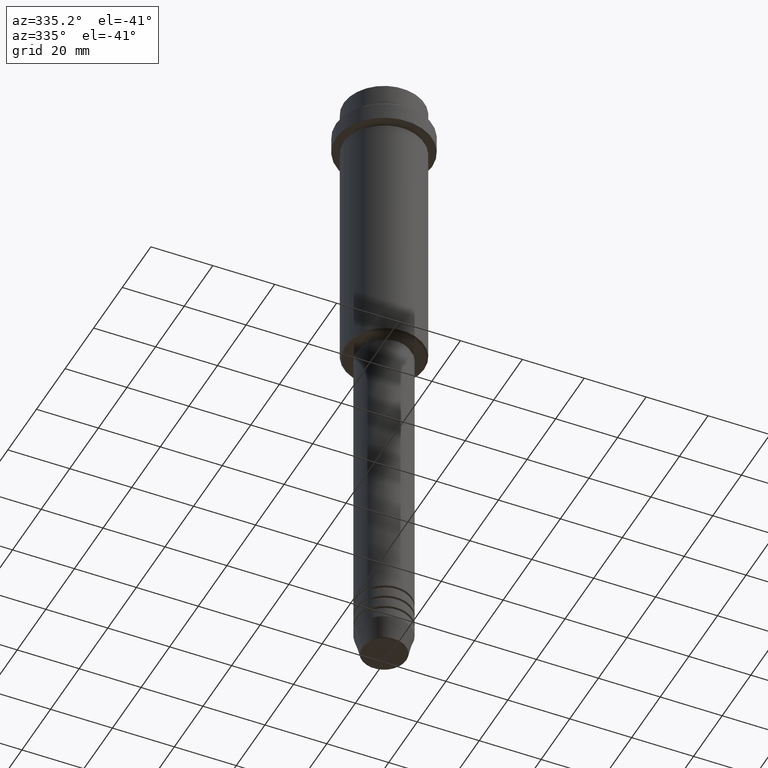
[diagram: clean part render]
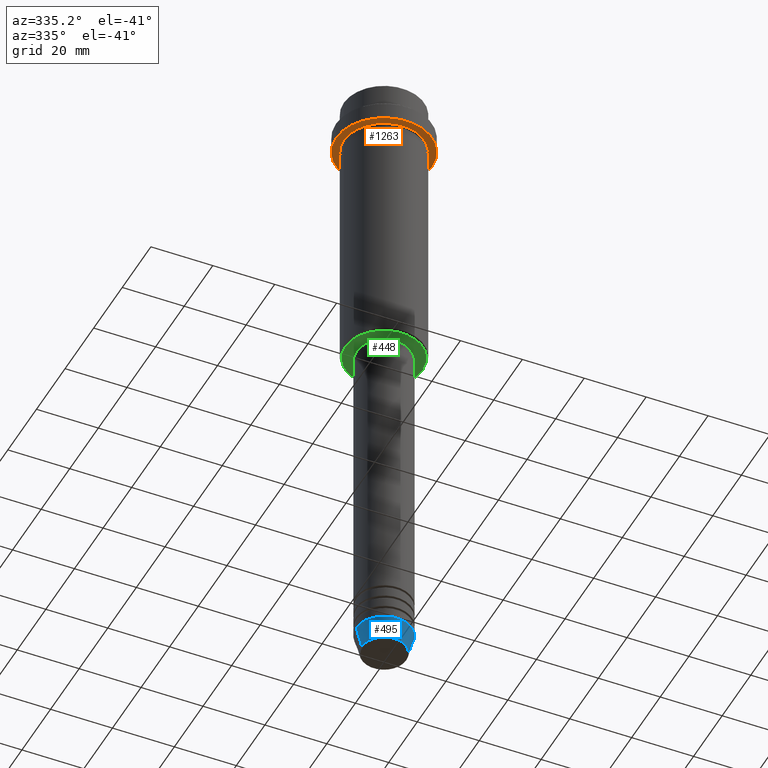
[diagram: same view with three faces highlighted in distinct colors, each labeled with its STEP entity id]
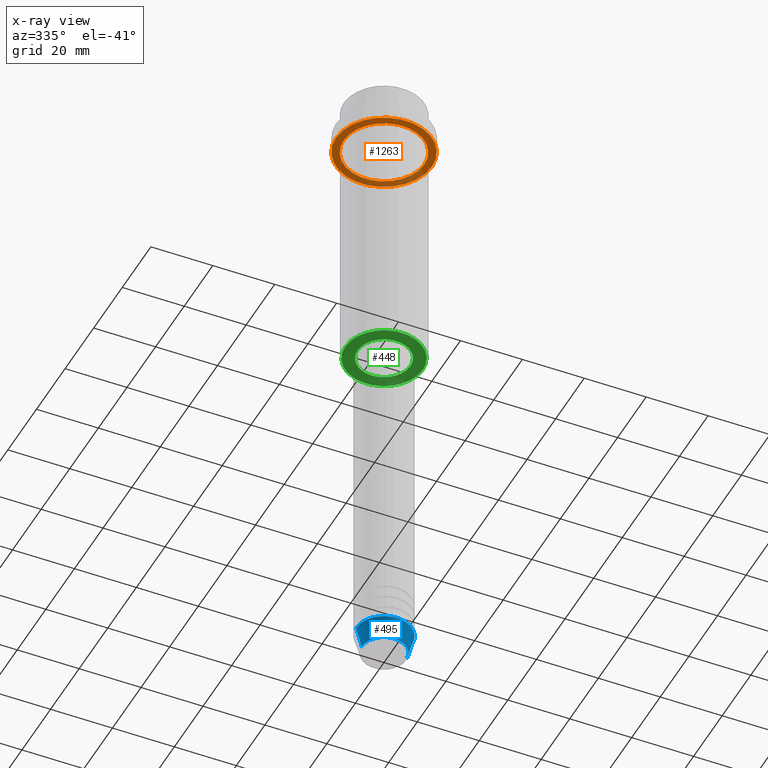
[diagram: x-ray of the same camera — body ghosted, the three highlighted faces saturated]
A machine part, auxiliary view with three faces highlighted in distinct colors.
The next image is the same camera in x-ray (body ghosted, the three faces saturated) — at least one of them is partly hidden behind the body in this view.
Their STEP definitions:

[orange] entity #1263 — the highlighted planar face has unit normal (0, 0, -1).
#82 = AXIS2_PLACEMENT_3D ( 'NONE', #299, #192, #93 ) ;
#93 = DIRECTION ( 'NONE',  ( -1.000000000000000000, 0.000000000000000000, 0.000000000000000000 ) ) ;
#174 = CIRCLE ( 'NONE', #82, 12.99999999999999467 ) ;
#192 = DIRECTION ( 'NONE',  ( -0.000000000000000000, -0.000000000000000000, 1.000000000000000000 ) ) ;
#196 = CIRCLE ( 'NONE', #1176, 15.50000000000000000 ) ;
#227 = CARTESIAN_POINT ( 'NONE',  ( 0.000000000000000000, 0.000000000000000000, -15.00000000000000178 ) ) ;
#251 = CARTESIAN_POINT ( 'NONE',  ( 15.50000000000000000, 0.000000000000000000, -15.00000000000000178 ) ) ;
#289 = AXIS2_PLACEMENT_3D ( 'NONE', #933, #403, #1380 ) ;
#295 = AXIS2_PLACEMENT_3D ( 'NONE', #1384, #1170, #1031 ) ;
#299 = CARTESIAN_POINT ( 'NONE',  ( 0.000000000000000000, 0.000000000000000000, -15.00000000000000000 ) ) ;
#385 = ORIENTED_EDGE ( 'NONE', *, *, #587, .F. ) ;
#403 = DIRECTION ( 'NONE',  ( -0.000000000000000000, -0.000000000000000000, 1.000000000000000000 ) ) ;
#409 = CARTESIAN_POINT ( 'NONE',  ( 12.99999999999999467, 1.592040838891558504E-15, -15.00000000000000000 ) ) ;
#497 = CARTESIAN_POINT ( 'NONE',  ( 0.000000000000000000, 0.000000000000000000, -15.00000000000000178 ) ) ;
#516 = CIRCLE ( 'NONE', #289, 12.99999999999999467 ) ;
#534 = EDGE_CURVE ( 'NONE', #1236, #907, #516, .T. ) ;
#548 = VERTEX_POINT ( 'NONE', #825 ) ;
#587 = EDGE_CURVE ( 'NONE', #1256, #548, #1013, .T. ) ;
#631 = ORIENTED_EDGE ( 'NONE', *, *, #847, .F. ) ;
#677 = FACE_OUTER_BOUND ( 'NONE', #1215, .T. ) ;
#808 = AXIS2_PLACEMENT_3D ( 'NONE', #227, #1077, #1415 ) ;
#825 = CARTESIAN_POINT ( 'NONE',  ( -15.50000000000000000, 1.898202538678397557E-15, -15.00000000000000178 ) ) ;
#847 = EDGE_CURVE ( 'NONE', #548, #1256, #196, .T. ) ;
#895 = DIRECTION ( 'NONE',  ( 1.000000000000000000, 0.000000000000000000, 0.000000000000000000 ) ) ;
#907 = VERTEX_POINT ( 'NONE', #409 ) ;
#933 = CARTESIAN_POINT ( 'NONE',  ( 0.000000000000000000, 0.000000000000000000, -15.00000000000000000 ) ) ;
#938 = EDGE_CURVE ( 'NONE', #907, #1236, #174, .T. ) ;
#1013 = CIRCLE ( 'NONE', #808, 15.50000000000000000 ) ;
#1031 = DIRECTION ( 'NONE',  ( -1.000000000000000000, 0.000000000000000000, -0.000000000000000000 ) ) ;
#1069 = ORIENTED_EDGE ( 'NONE', *, *, #534, .T. ) ;
#1077 = DIRECTION ( 'NONE',  ( -0.000000000000000000, -0.000000000000000000, 1.000000000000000000 ) ) ;
#1117 = CARTESIAN_POINT ( 'NONE',  ( -12.99999999999999467, 0.000000000000000000, -15.00000000000000000 ) ) ;
#1170 = DIRECTION ( 'NONE',  ( 0.000000000000000000, 0.000000000000000000, -1.000000000000000000 ) ) ;
#1176 = AXIS2_PLACEMENT_3D ( 'NONE', #497, #1226, #895 ) ;
#1215 = EDGE_LOOP ( 'NONE', ( #385, #631 ) ) ;
#1226 = DIRECTION ( 'NONE',  ( -0.000000000000000000, -0.000000000000000000, 1.000000000000000000 ) ) ;
#1236 = VERTEX_POINT ( 'NONE', #1117 ) ;
#1246 = EDGE_LOOP ( 'NONE', ( #1069, #1393 ) ) ;
#1256 = VERTEX_POINT ( 'NONE', #251 ) ;
#1263 = ADVANCED_FACE ( 'NONE', ( #1357, #677 ), #1369, .T. ) ;
#1357 = FACE_BOUND ( 'NONE', #1246, .T. ) ;
#1369 = PLANE ( 'NONE',  #295 ) ;
#1380 = DIRECTION ( 'NONE',  ( -1.000000000000000000, 0.000000000000000000, 0.000000000000000000 ) ) ;
#1384 = CARTESIAN_POINT ( 'NONE',  ( 0.000000000000000000, 15.50000000000000000, -15.00000000000000000 ) ) ;
#1393 = ORIENTED_EDGE ( 'NONE', *, *, #938, .T. ) ;
#1415 = DIRECTION ( 'NONE',  ( 1.000000000000000000, 0.000000000000000000, 0.000000000000000000 ) ) ;

[blue] entity #495 — the highlighted conical surface has half-angle 15 deg.
#94 = CARTESIAN_POINT ( 'NONE',  ( -9.000000000000000000, 1.102182119232617714E-15, -203.0000000000000000 ) ) ;
#178 = EDGE_CURVE ( 'NONE', #337, #405, #734, .T. ) ;
#328 = CARTESIAN_POINT ( 'NONE',  ( 9.000000000000000000, 0.000000000000000000, -203.0000000000000000 ) ) ;
#337 = VERTEX_POINT ( 'NONE', #483 ) ;
#339 = DIRECTION ( 'NONE',  ( 1.000000000000000000, 0.000000000000000000, 0.000000000000000000 ) ) ;
#357 = ORIENTED_EDGE ( 'NONE', *, *, #777, .F. ) ;
#405 = VERTEX_POINT ( 'NONE', #94 ) ;
#455 = ORIENTED_EDGE ( 'NONE', *, *, #1096, .T. ) ;
#483 = CARTESIAN_POINT ( 'NONE',  ( -7.223655072137194821, 9.934123627281767082E-16, -209.6294095225512706 ) ) ;
#495 = ADVANCED_FACE ( 'NONE', ( #1053 ), #896, .T. ) ;
#558 = CARTESIAN_POINT ( 'NONE',  ( 0.000000000000000000, 0.000000000000000000, -209.6294095225512706 ) ) ;
#577 = VERTEX_POINT ( 'NONE', #970 ) ;
#633 = CARTESIAN_POINT ( 'NONE',  ( 0.000000000000000000, 0.000000000000000000, -203.0000000000000000 ) ) ;
#663 = ORIENTED_EDGE ( 'NONE', *, *, #700, .T. ) ;
#700 = EDGE_CURVE ( 'NONE', #337, #577, #852, .T. ) ;
#719 = DIRECTION ( 'NONE',  ( -0.000000000000000000, -0.000000000000000000, 1.000000000000000000 ) ) ;
#734 = LINE ( 'NONE', #963, #1079 ) ;
#777 = EDGE_CURVE ( 'NONE', #405, #1317, #1035, .T. ) ;
#835 = EDGE_LOOP ( 'NONE', ( #853, #663, #455, #357 ) ) ;
#838 = CARTESIAN_POINT ( 'NONE',  ( 9.000000000000000000, 0.000000000000000000, -203.0000000000000000 ) ) ;
#852 = CIRCLE ( 'NONE', #1409, 7.223655072137194821 ) ;
#853 = ORIENTED_EDGE ( 'NONE', *, *, #178, .F. ) ;
#896 = CONICAL_SURFACE ( 'NONE', #1313, 9.000000000000000000, 0.2617993877991491303 ) ;
#963 = CARTESIAN_POINT ( 'NONE',  ( -9.000000000000000000, 1.102182119232617714E-15, -203.0000000000000000 ) ) ;
#968 = LINE ( 'NONE', #328, #1154 ) ;
#970 = CARTESIAN_POINT ( 'NONE',  ( 7.223655072137194821, 0.000000000000000000, -209.6294095225512706 ) ) ;
#1035 = CIRCLE ( 'NONE', #1224, 9.000000000000000000 ) ;
#1053 = FACE_OUTER_BOUND ( 'NONE', #835, .T. ) ;
#1072 = DIRECTION ( 'NONE',  ( 1.000000000000000000, 0.000000000000000000, 0.000000000000000000 ) ) ;
#1079 = VECTOR ( 'NONE', #1177, 1000.000000000000114 ) ;
#1096 = EDGE_CURVE ( 'NONE', #577, #1317, #968, .T. ) ;
#1128 = DIRECTION ( 'NONE',  ( 1.000000000000000000, 0.000000000000000000, 0.000000000000000000 ) ) ;
#1154 = VECTOR ( 'NONE', #1414, 1000.000000000000114 ) ;
#1177 = DIRECTION ( 'NONE',  ( -0.2588190451025205174, 3.169619151431761243E-17, 0.9659258262890684232 ) ) ;
#1224 = AXIS2_PLACEMENT_3D ( 'NONE', #1330, #1347, #1128 ) ;
#1313 = AXIS2_PLACEMENT_3D ( 'NONE', #633, #719, #1072 ) ;
#1317 = VERTEX_POINT ( 'NONE', #838 ) ;
#1321 = DIRECTION ( 'NONE',  ( -0.000000000000000000, -0.000000000000000000, 1.000000000000000000 ) ) ;
#1330 = CARTESIAN_POINT ( 'NONE',  ( 0.000000000000000000, 0.000000000000000000, -203.0000000000000000 ) ) ;
#1347 = DIRECTION ( 'NONE',  ( -0.000000000000000000, -0.000000000000000000, 1.000000000000000000 ) ) ;
#1409 = AXIS2_PLACEMENT_3D ( 'NONE', #558, #1321, #339 ) ;
#1414 = DIRECTION ( 'NONE',  ( 0.2588190451025205174, 0.000000000000000000, 0.9659258262890684232 ) ) ;

[green] entity #448 — the highlighted planar face has unit normal (0, 0, -1).
#35 = CIRCLE ( 'NONE', #444, 12.49999999999995559 ) ;
#65 = CARTESIAN_POINT ( 'NONE',  ( 12.49999999999995559, 0.000000000000000000, -95.00000000000000000 ) ) ;
#117 = DIRECTION ( 'NONE',  ( 1.000000000000000000, 0.000000000000000000, 0.000000000000000000 ) ) ;
#171 = DIRECTION ( 'NONE',  ( -1.000000000000000000, 0.000000000000000000, 0.000000000000000000 ) ) ;
#183 = CARTESIAN_POINT ( 'NONE',  ( 0.000000000000000000, 0.000000000000000000, -95.00000000000000000 ) ) ;
#273 = VERTEX_POINT ( 'NONE', #807 ) ;
#300 = PLANE ( 'NONE',  #1034 ) ;
#326 = EDGE_CURVE ( 'NONE', #273, #1065, #1152, .T. ) ;
#425 = DIRECTION ( 'NONE',  ( -1.000000000000000000, 0.000000000000000000, 0.000000000000000000 ) ) ;
#444 = AXIS2_PLACEMENT_3D ( 'NONE', #1284, #953, #171 ) ;
#448 = ADVANCED_FACE ( 'NONE', ( #954, #1403 ), #300, .T. ) ;
#490 = AXIS2_PLACEMENT_3D ( 'NONE', #1217, #976, #117 ) ;
#523 = CIRCLE ( 'NONE', #1180, 12.49999999999995559 ) ;
#559 = DIRECTION ( 'NONE',  ( 0.000000000000000000, 0.000000000000000000, -1.000000000000000000 ) ) ;
#601 = AXIS2_PLACEMENT_3D ( 'NONE', #1130, #1262, #898 ) ;
#609 = EDGE_CURVE ( 'NONE', #1065, #273, #1102, .T. ) ;
#642 = ORIENTED_EDGE ( 'NONE', *, *, #609, .T. ) ;
#671 = ORIENTED_EDGE ( 'NONE', *, *, #326, .T. ) ;
#710 = CARTESIAN_POINT ( 'NONE',  ( 0.000000000000000000, 13.00000000000000000, -95.00000000000000000 ) ) ;
#726 = DIRECTION ( 'NONE',  ( 0.000000000000000000, 0.000000000000000000, -1.000000000000000000 ) ) ;
#807 = CARTESIAN_POINT ( 'NONE',  ( 8.499999999999994671, 0.000000000000000000, -95.00000000000000000 ) ) ;
#844 = CARTESIAN_POINT ( 'NONE',  ( -12.49999999999995559, 1.561424668912872745E-15, -95.00000000000000000 ) ) ;
#892 = VERTEX_POINT ( 'NONE', #844 ) ;
#898 = DIRECTION ( 'NONE',  ( 1.000000000000000000, 0.000000000000000000, 0.000000000000000000 ) ) ;
#906 = EDGE_CURVE ( 'NONE', #940, #892, #35, .T. ) ;
#940 = VERTEX_POINT ( 'NONE', #65 ) ;
#942 = ORIENTED_EDGE ( 'NONE', *, *, #1381, .T. ) ;
#953 = DIRECTION ( 'NONE',  ( 0.000000000000000000, 0.000000000000000000, -1.000000000000000000 ) ) ;
#954 = FACE_OUTER_BOUND ( 'NONE', #986, .T. ) ;
#976 = DIRECTION ( 'NONE',  ( -0.000000000000000000, -0.000000000000000000, 1.000000000000000000 ) ) ;
#986 = EDGE_LOOP ( 'NONE', ( #1351, #942 ) ) ;
#1034 = AXIS2_PLACEMENT_3D ( 'NONE', #710, #726, #1397 ) ;
#1065 = VERTEX_POINT ( 'NONE', #1417 ) ;
#1102 = CIRCLE ( 'NONE', #490, 8.499999999999994671 ) ;
#1130 = CARTESIAN_POINT ( 'NONE',  ( 0.000000000000000000, 0.000000000000000000, -95.00000000000000000 ) ) ;
#1152 = CIRCLE ( 'NONE', #601, 8.499999999999994671 ) ;
#1180 = AXIS2_PLACEMENT_3D ( 'NONE', #183, #559, #425 ) ;
#1217 = CARTESIAN_POINT ( 'NONE',  ( 0.000000000000000000, 0.000000000000000000, -95.00000000000000000 ) ) ;
#1262 = DIRECTION ( 'NONE',  ( -0.000000000000000000, -0.000000000000000000, 1.000000000000000000 ) ) ;
#1284 = CARTESIAN_POINT ( 'NONE',  ( 0.000000000000000000, 0.000000000000000000, -95.00000000000000000 ) ) ;
#1349 = EDGE_LOOP ( 'NONE', ( #671, #642 ) ) ;
#1351 = ORIENTED_EDGE ( 'NONE', *, *, #906, .T. ) ;
#1381 = EDGE_CURVE ( 'NONE', #892, #940, #523, .T. ) ;
#1397 = DIRECTION ( 'NONE',  ( -1.000000000000000000, 0.000000000000000000, -0.000000000000000000 ) ) ;
#1403 = FACE_BOUND ( 'NONE', #1349, .T. ) ;
#1417 = CARTESIAN_POINT ( 'NONE',  ( -8.499999999999994671, 1.040949779275249745E-15, -95.00000000000000000 ) ) ;